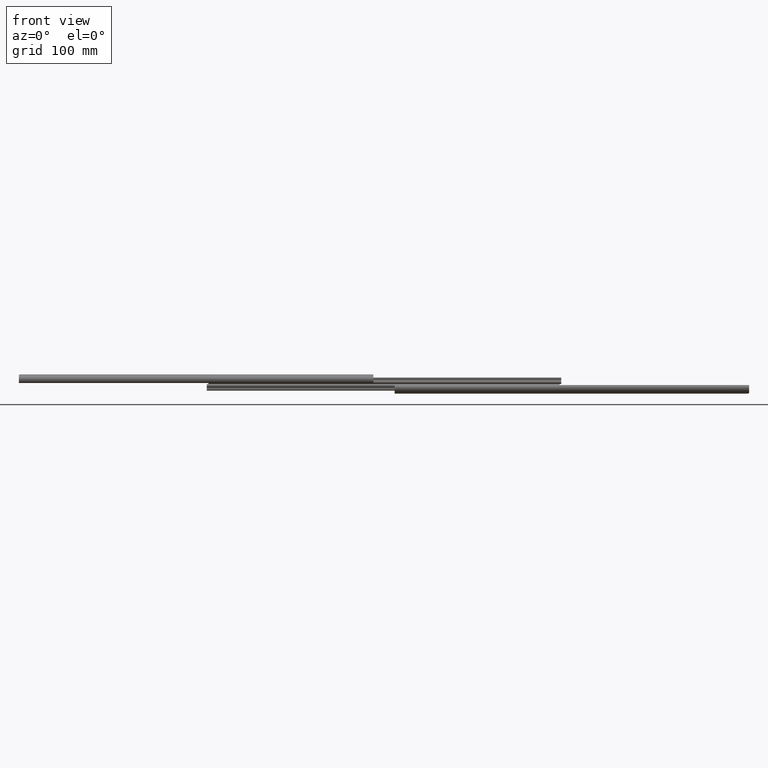
[diagram: clean part render]
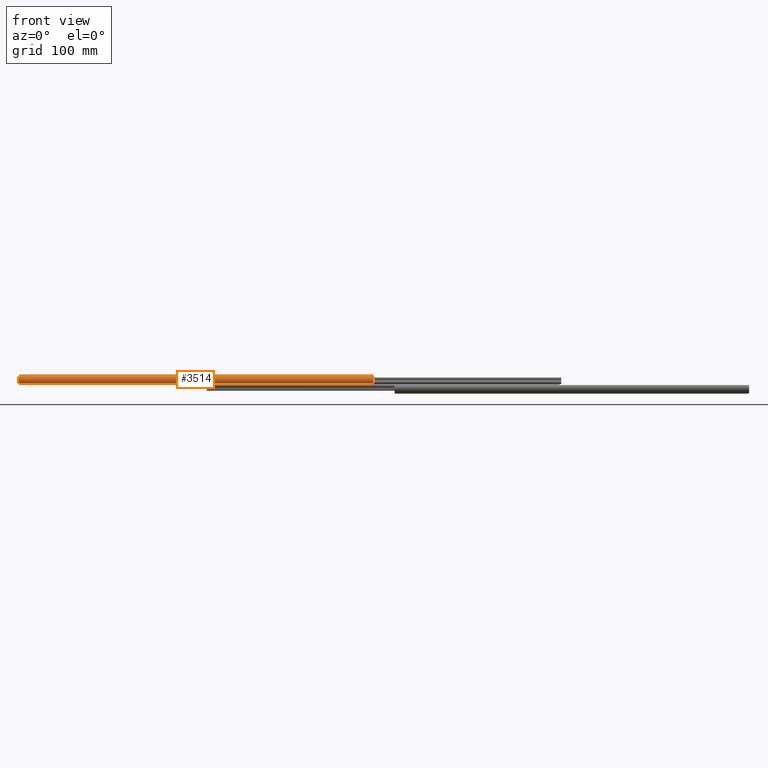
[diagram: same view with one face highlighted and labeled with its STEP entity id]
A machine part, front view. The second image highlights one B-rep face of the part: STEP entity #3514.
In plain terms, the highlighted cylindrical surface (edge-blend (fillet) strip) has radius 4 mm, axis along (1, -0, 0).
Its self-contained STEP definition (entity closure, byte-faithful):
#86 = DIRECTION ( 'NONE',  ( -1.000000000000000000, -0.0000000000000000000, -0.0000000000000000000 ) ) ;
#100 = EDGE_LOOP ( 'NONE', ( #312, #4101, #3052, #2308 ) ) ;
#213 = DIRECTION ( 'NONE',  ( -1.000000000000000000, -0.0000000000000000000, -0.0000000000000000000 ) ) ;
#312 = ORIENTED_EDGE ( 'NONE', *, *, #743, .F. ) ;
#432 = CARTESIAN_POINT ( 'NONE',  ( 355.6000000000000200, -15.91053091109173300, 8.600000000000021000 ) ) ;
#743 = EDGE_CURVE ( 'NONE', #4001, #4062, #4368, .T. ) ;
#763 = DIRECTION ( 'NONE',  ( 0.0000000000000000000, 0.0000000000000000000, -1.000000000000000000 ) ) ;
#777 = VECTOR ( 'NONE', #4528, 1000.000000000000000 ) ;
#802 = CARTESIAN_POINT ( 'NONE',  ( 355.6000000000000200, -13.64999999999999700, 5.300000000000091300 ) ) ;
#853 = AXIS2_PLACEMENT_3D ( 'NONE', #3809, #1682, #4177 ) ;
#1133 = FACE_OUTER_BOUND ( 'NONE', #100, .T. ) ;
#1201 = CARTESIAN_POINT ( 'NONE',  ( 0.0000000000000000000, -13.64999999999999700, 5.300000000000091300 ) ) ;
#1327 = CARTESIAN_POINT ( 'NONE',  ( 355.6000000000000200, -16.48258451996917300, 2.475736390272456500 ) ) ;
#1363 = LINE ( 'NONE', #2333, #3012 ) ;
#1682 = DIRECTION ( 'NONE',  ( -1.000000000000000000, -0.0000000000000000000, -0.0000000000000000000 ) ) ;
#1839 = CIRCLE ( 'NONE', #853, 4.000000000000095900 ) ;
#2308 = ORIENTED_EDGE ( 'NONE', *, *, #2687, .T. ) ;
#2333 = CARTESIAN_POINT ( 'NONE',  ( 355.6000000000000200, -15.91053091109173300, 8.600000000000021000 ) ) ;
#2648 = AXIS2_PLACEMENT_3D ( 'NONE', #802, #86, #3278 ) ;
#2660 = AXIS2_PLACEMENT_3D ( 'NONE', #1201, #2930, #763 ) ;
#2687 = EDGE_CURVE ( 'NONE', #4256, #4062, #1363, .T. ) ;
#2761 = EDGE_CURVE ( 'NONE', #3813, #4256, #1839, .T. ) ;
#2768 = EDGE_CURVE ( 'NONE', #3813, #4001, #4582, .T. ) ;
#2769 = CARTESIAN_POINT ( 'NONE',  ( 0.0000000000000000000, -16.48258451996917300, 2.475736390272456500 ) ) ;
#2809 = CYLINDRICAL_SURFACE ( 'NONE', #2648, 4.000000000000095900 ) ;
#2930 = DIRECTION ( 'NONE',  ( -1.000000000000000000, -0.0000000000000000000, -0.0000000000000000000 ) ) ;
#3012 = VECTOR ( 'NONE', #213, 1000.000000000000000 ) ;
#3052 = ORIENTED_EDGE ( 'NONE', *, *, #2761, .T. ) ;
#3278 = DIRECTION ( 'NONE',  ( 0.0000000000000000000, 0.0000000000000000000, 1.000000000000000000 ) ) ;
#3514 = ADVANCED_FACE ( 'NONE', ( #1133 ), #2809, .T. ) ;
#3809 = CARTESIAN_POINT ( 'NONE',  ( 355.6000000000000200, -13.64999999999999700, 5.300000000000091300 ) ) ;
#3813 = VERTEX_POINT ( 'NONE', #4089 ) ;
#4001 = VERTEX_POINT ( 'NONE', #2769 ) ;
#4062 = VERTEX_POINT ( 'NONE', #4245 ) ;
#4089 = CARTESIAN_POINT ( 'NONE',  ( 355.6000000000000200, -16.48258451996917300, 2.475736390272456500 ) ) ;
#4101 = ORIENTED_EDGE ( 'NONE', *, *, #2768, .F. ) ;
#4177 = DIRECTION ( 'NONE',  ( 0.0000000000000000000, 0.0000000000000000000, -1.000000000000000000 ) ) ;
#4245 = CARTESIAN_POINT ( 'NONE',  ( 0.0000000000000000000, -15.91053091109173300, 8.600000000000021000 ) ) ;
#4256 = VERTEX_POINT ( 'NONE', #432 ) ;
#4368 = CIRCLE ( 'NONE', #2660, 4.000000000000095900 ) ;
#4528 = DIRECTION ( 'NONE',  ( -1.000000000000000000, -0.0000000000000000000, -0.0000000000000000000 ) ) ;
#4582 = LINE ( 'NONE', #1327, #777 ) ;